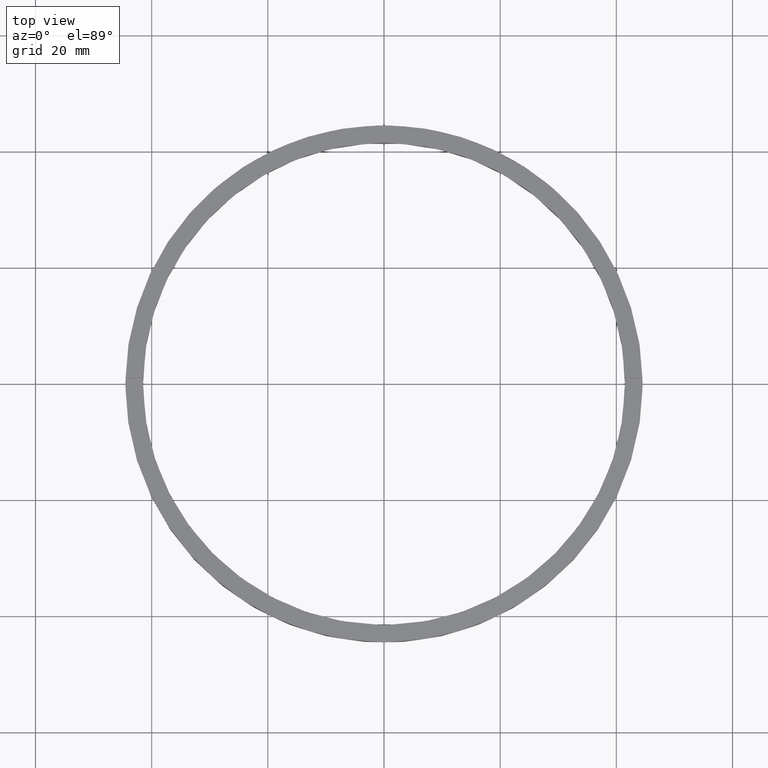
[diagram: clean part render]
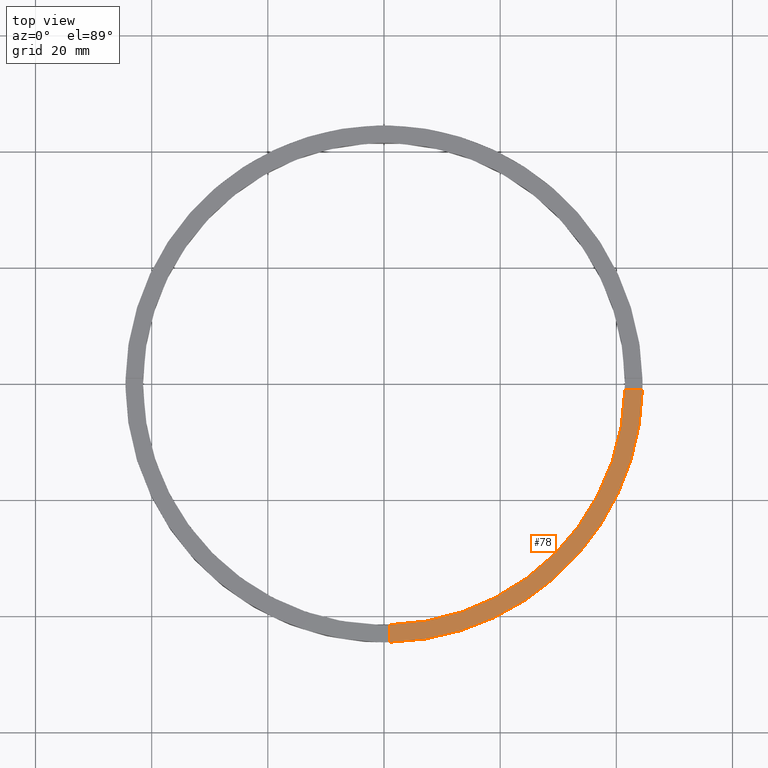
[diagram: same view with one face highlighted and labeled with its STEP entity id]
A machine part, top view. The second image highlights one B-rep face of the part: STEP entity #78.
In plain terms, the highlighted planar face has unit normal (0, 0, 1).
Its self-contained STEP definition (entity closure, byte-faithful):
#8 = DIRECTION ( 'NONE',  ( -1.301042606982605074E-16, 1.000000000000000000, -0.000000000000000000 ) ) ;
#16 = EDGE_CURVE ( 'NONE', #259, #456, #483, .T. ) ;
#30 = EDGE_LOOP ( 'NONE', ( #216, #753, #117, #114 ) ) ;
#38 = CARTESIAN_POINT ( 'NONE',  ( 34.49999999999999289, -1.000000000000156763, 4.000000000000000000 ) ) ;
#78 = ADVANCED_FACE ( 'NONE', ( #677 ), #106, .T. ) ;
#82 = CARTESIAN_POINT ( 'NONE',  ( 0.000000000000000000, 0.000000000000000000, 4.000000000000000000 ) ) ;
#106 = PLANE ( 'NONE',  #569 ) ;
#114 = ORIENTED_EDGE ( 'NONE', *, *, #507, .T. ) ;
#117 = ORIENTED_EDGE ( 'NONE', *, *, #425, .F. ) ;
#128 = LINE ( 'NONE', #273, #388 ) ;
#140 = DIRECTION ( 'NONE',  ( 0.000000000000000000, 0.000000000000000000, 1.000000000000000000 ) ) ;
#176 = DIRECTION ( 'NONE',  ( 1.000000000000000000, 0.000000000000000000, 0.000000000000000000 ) ) ;
#201 = AXIS2_PLACEMENT_3D ( 'NONE', #589, #226, #529 ) ;
#203 = CARTESIAN_POINT ( 'NONE',  ( 41.48795005781799006, -1.000000000000156319, 4.000000000000000000 ) ) ;
#216 = ORIENTED_EDGE ( 'NONE', *, *, #16, .F. ) ;
#225 = VECTOR ( 'NONE', #437, 1000.000000000000000 ) ;
#226 = DIRECTION ( 'NONE',  ( 0.000000000000000000, 0.000000000000000000, 1.000000000000000000 ) ) ;
#231 = CARTESIAN_POINT ( 'NONE',  ( 0.9999999999998414602, -41.48795005781800427, 4.000000000000000000 ) ) ;
#259 = VERTEX_POINT ( 'NONE', #203 ) ;
#273 = CARTESIAN_POINT ( 'NONE',  ( 0.9999999999998406830, -34.50000000000018474, 4.000000000000000000 ) ) ;
#303 = CARTESIAN_POINT ( 'NONE',  ( 0.000000000000000000, 0.000000000000000000, 4.000000000000000000 ) ) ;
#321 = EDGE_CURVE ( 'NONE', #695, #259, #673, .T. ) ;
#370 = CARTESIAN_POINT ( 'NONE',  ( 0.9999999999998419042, -44.48876262608346366, 4.000000000000000000 ) ) ;
#388 = VECTOR ( 'NONE', #8, 1000.000000000000000 ) ;
#425 = EDGE_CURVE ( 'NONE', #618, #695, #128, .T. ) ;
#434 = CIRCLE ( 'NONE', #201, 44.50000000000000711 ) ;
#437 = DIRECTION ( 'NONE',  ( 1.000000000000000000, 6.505213034913025371E-17, 0.000000000000000000 ) ) ;
#451 = DIRECTION ( 'NONE',  ( 0.000000000000000000, 0.000000000000000000, 1.000000000000000000 ) ) ;
#456 = VERTEX_POINT ( 'NONE', #581 ) ;
#483 = LINE ( 'NONE', #38, #225 ) ;
#496 = DIRECTION ( 'NONE',  ( 1.000000000000000000, 0.000000000000000000, -0.000000000000000000 ) ) ;
#507 = EDGE_CURVE ( 'NONE', #618, #456, #434, .T. ) ;
#529 = DIRECTION ( 'NONE',  ( 1.000000000000000000, 0.000000000000000000, 0.000000000000000000 ) ) ;
#569 = AXIS2_PLACEMENT_3D ( 'NONE', #303, #140, #496 ) ;
#581 = CARTESIAN_POINT ( 'NONE',  ( 44.48876262608345655, -1.000000000000156097, 4.000000000000000000 ) ) ;
#589 = CARTESIAN_POINT ( 'NONE',  ( 0.000000000000000000, 0.000000000000000000, 4.000000000000000000 ) ) ;
#618 = VERTEX_POINT ( 'NONE', #370 ) ;
#673 = CIRCLE ( 'NONE', #744, 41.50000000000000000 ) ;
#677 = FACE_OUTER_BOUND ( 'NONE', #30, .T. ) ;
#695 = VERTEX_POINT ( 'NONE', #231 ) ;
#744 = AXIS2_PLACEMENT_3D ( 'NONE', #82, #451, #176 ) ;
#753 = ORIENTED_EDGE ( 'NONE', *, *, #321, .F. ) ;